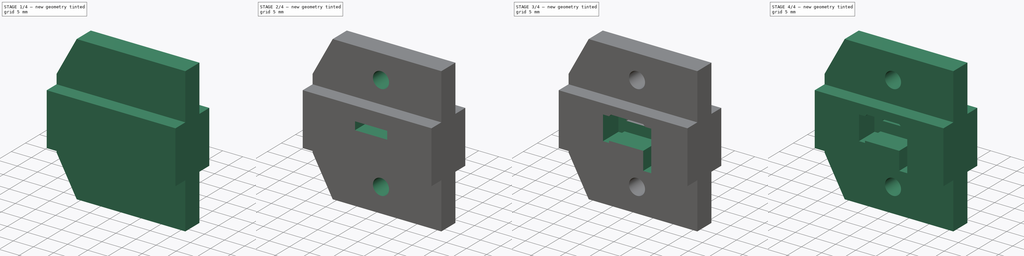
[diagram: build sequence overview — one tinted view per stage of 4, left to right]
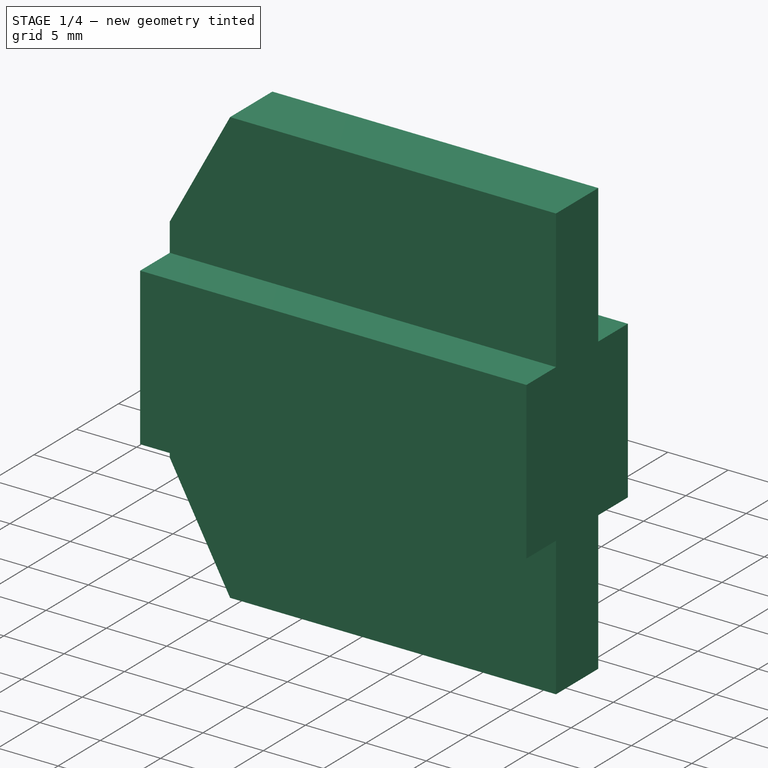
[diagram: stage 1 of 4 — iso view after this stage's code; geometry added in this stage tinted green]
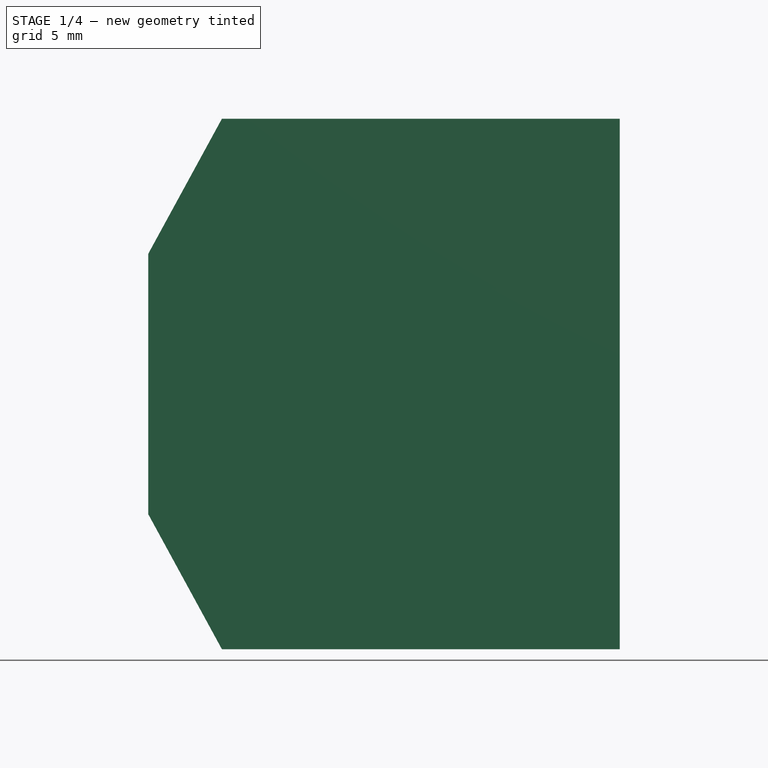
[diagram: stage 1 of 4 — front view after this stage's code; geometry added in this stage tinted green]
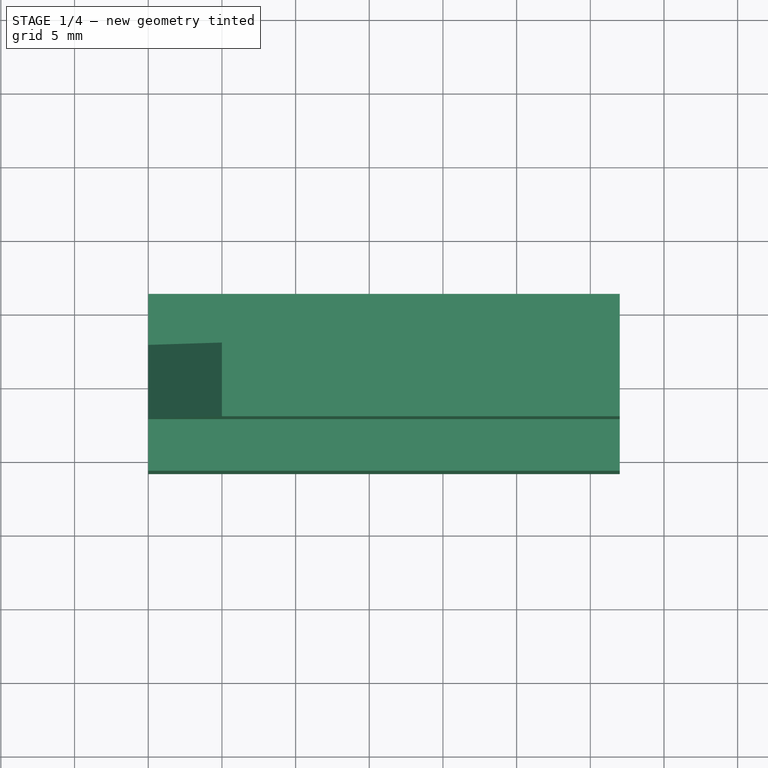
[diagram: stage 1 of 4 — top view after this stage's code; geometry added in this stage tinted green]
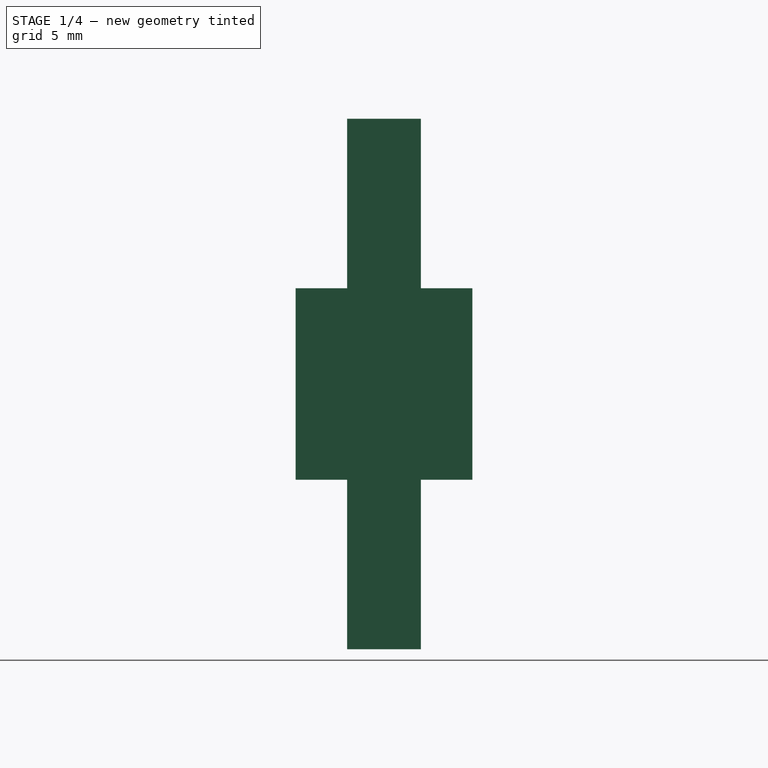
[diagram: stage 1 of 4 — right view after this stage's code; geometry added in this stage tinted green]
FCSTD DOCUMENT  (FreeCAD 0.20R29410 (Git))
Label: wuerth_idc_crimp
License: All rights reserved
LicenseURL: http://en.wikipedia.org/wiki/All_rights_reserved
objects: Sketcher::SketchObject×7, PartDesign::Pocket×5, Part::FeaturePython×3, PartDesign::Pad×1, Part::Extrusion×1, App::Part×1, PartDesign::Body×1, App::DocumentObjectGroup×1
note: 24 computed .brp shape members not serialized (recipe doc carries the construction recipe); baked Part::Feature solids carry a one-line shape summary decoded from their .brp

FEATURE [Sketcher::SketchObject] Sketch
  FullyConstrained = false
  MapMode = 5
  Placement = pos=(0,0,0) rot=(0.57735,0.57735,0.57735;2.0944rad)
  Support = -> [YZ_Plane]
  sketch-geometry (16):
    g0: LineSegment StartX=0 StartY=18 StartZ=0 EndX=2.5 EndY=18 EndZ=0
    g1: LineSegment StartX=2.5 StartY=18 StartZ=0 EndX=2.5 EndY=6.5 EndZ=0
    g2: LineSegment StartX=2.5 StartY=6.5 StartZ=0 EndX=6 EndY=6.5 EndZ=0
    g3: LineSegment StartX=6 StartY=6.5 StartZ=0 EndX=6 EndY=0 EndZ=0
    g4: LineSegment StartX=0 StartY=18 StartZ=0 EndX=-2.5 EndY=18 EndZ=0
    g5: LineSegment StartX=-2.5 StartY=18 StartZ=0 EndX=-2.5 EndY=6.5 EndZ=0
    g6: LineSegment StartX=-2.5 StartY=6.5 StartZ=0 EndX=-6 EndY=6.5 EndZ=0
    g7: LineSegment StartX=-6 StartY=6.5 StartZ=0 EndX=-6 EndY=0 EndZ=0
    g8: LineSegment StartX=0 StartY=-18 StartZ=0 EndX=2.5 EndY=-18 EndZ=0
    g9: LineSegment StartX=2.5 StartY=-18 StartZ=0 EndX=2.5 EndY=-6.5 EndZ=0
    g10: LineSegment StartX=2.5 StartY=-6.5 StartZ=0 EndX=6 EndY=-6.5 EndZ=0
    g11: LineSegment StartX=6 StartY=-6.5 StartZ=0 EndX=6 EndY=0 EndZ=0
    g12: LineSegment StartX=0 StartY=-18 StartZ=0 EndX=-2.5 EndY=-18 EndZ=0
    g13: LineSegment StartX=-2.5 StartY=-18 StartZ=0 EndX=-2.5 EndY=-6.5 EndZ=0
    g14: LineSegment StartX=-2.5 StartY=-6.5 StartZ=0 EndX=-6 EndY=-6.5 EndZ=0
    g15: LineSegment StartX=-6 StartY=-6.5 StartZ=0 EndX=-6 EndY=0 EndZ=0
  constraints (30):
    c: PointOnObject(g0,g-2)
    c: Horizontal(g0)
    c: Coincident(g0,g1)
    c: Vertical(g1)
    c: Coincident(g1,g2)
    c: Horizontal(g2)
    c: Coincident(g2,g3)
    c: PointOnObject(g3,g-1)
    c: Vertical(g3)
    c: Horizontal(g4)
    c: Coincident(g4,g5)
    c: Vertical(g5)
    c: Coincident(g5,g6)
    c: Horizontal(g6)
    c: Coincident(g6,g7)
    c: Vertical(g7)
    c: Horizontal(g8)
    c: Coincident(g8,g9)
    c: Vertical(g9)
    c: Coincident(g9,g10)
    c: Horizontal(g10)
    c: Coincident(g10,g11)
    c: Vertical(g11)
    c: Horizontal(g12)
    c: Coincident(g12,g13)
    c: Vertical(g13)
    c: Coincident(g13,g14)
    c: Horizontal(g14)
    c: Coincident(g14,g15)
    c: Vertical(g15)
FEATURE [PartDesign::Pad] Pad  label="base_insert"
  Direction = (1,-2e-16,3e-16)
  Length = 32
  Length2 = 10
  Placement = pos=(0,0,0) rot=(0.57735,0.57735,0.57735;2.0944rad)
  Profile = -> Sketch
  ReferenceAxis = -> Sketch [N_Axis]
  Type = 0
FEATURE [Sketcher::SketchObject] Sketch001
  FullyConstrained = false
  MapMode = 5
  Placement = pos=(0,0,0) rot=(1,0,0;1.5708rad)
  Support = -> [XZ_Plane]
  sketch-geometry (8):
    g0: LineSegment StartX=-1 StartY=7 StartZ=0 EndX=5 EndY=18 EndZ=0
    g1: LineSegment StartX=5 StartY=18 StartZ=0 EndX=5 EndY=19 EndZ=0
    g2: LineSegment StartX=5 StartY=19 StartZ=0 EndX=-1 EndY=19 EndZ=0
    g3: LineSegment StartX=-1 StartY=19 StartZ=0 EndX=-1 EndY=7 EndZ=0
    g4: LineSegment StartX=-1 StartY=-7 StartZ=0 EndX=5 EndY=-18 EndZ=0
    g5: LineSegment StartX=5 StartY=-18 StartZ=0 EndX=5 EndY=-19 EndZ=0
    g6: LineSegment StartX=5 StartY=-19 StartZ=0 EndX=-1 EndY=-19 EndZ=0
    g7: LineSegment StartX=-1 StartY=-19 StartZ=0 EndX=-1 EndY=-7 EndZ=0
  constraints (14):
    c: Coincident(g0,g1)
    c: Vertical(g1)
    c: Coincident(g1,g2)
    c: Horizontal(g2)
    c: Coincident(g2,g3)
    c: Coincident(g3,g0)
    c: Vertical(g3)
    c: Coincident(g4,g5)
    c: Vertical(g5)
    c: Coincident(g5,g6)
    c: Horizontal(g6)
    c: Coincident(g6,g7)
    c: Coincident(g7,g4)
    c: Vertical(g7)
FEATURE [PartDesign::Pocket] Pocket  label="front_chamfer"
  BaseFeature = -> Pad
  Direction = (0,1,-2e-16)
  Length = 10
  Length2 = 5
  Midplane = true
  Placement = pos=(0,0,0) rot=(0.57735,0.57735,0.57735;2.0944rad)
  Profile = -> Sketch001
  ReferenceAxis = -> Sketch001 [N_Axis]
  Type = 0
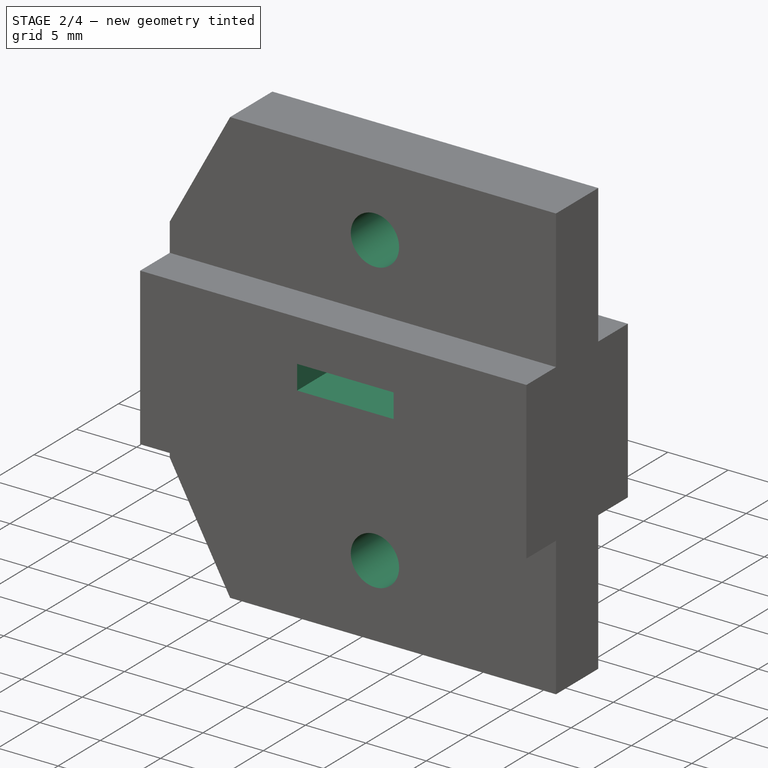
[diagram: stage 2 of 4 — iso view after this stage's code; geometry added in this stage tinted green]
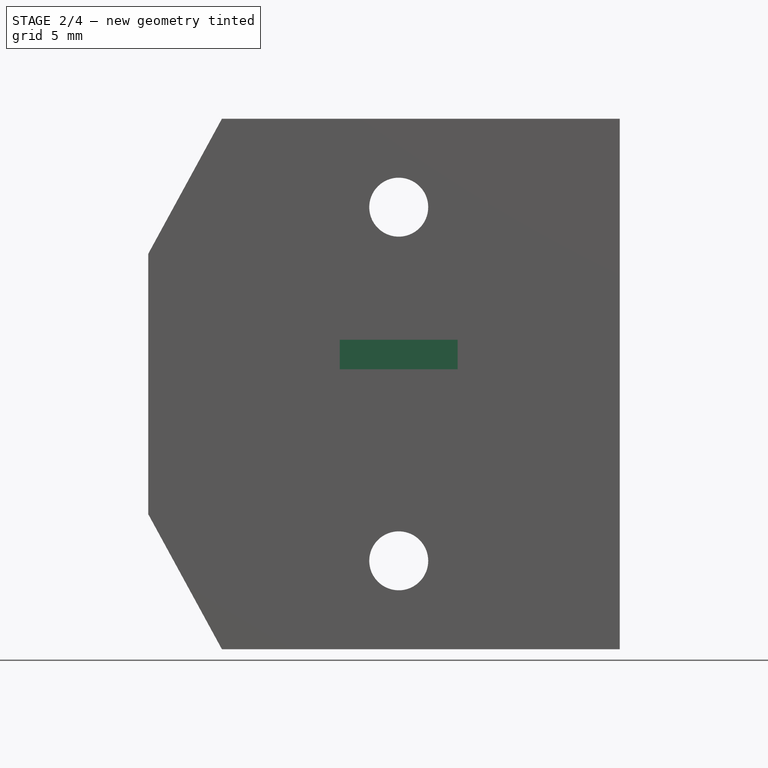
[diagram: stage 2 of 4 — front view after this stage's code; geometry added in this stage tinted green]
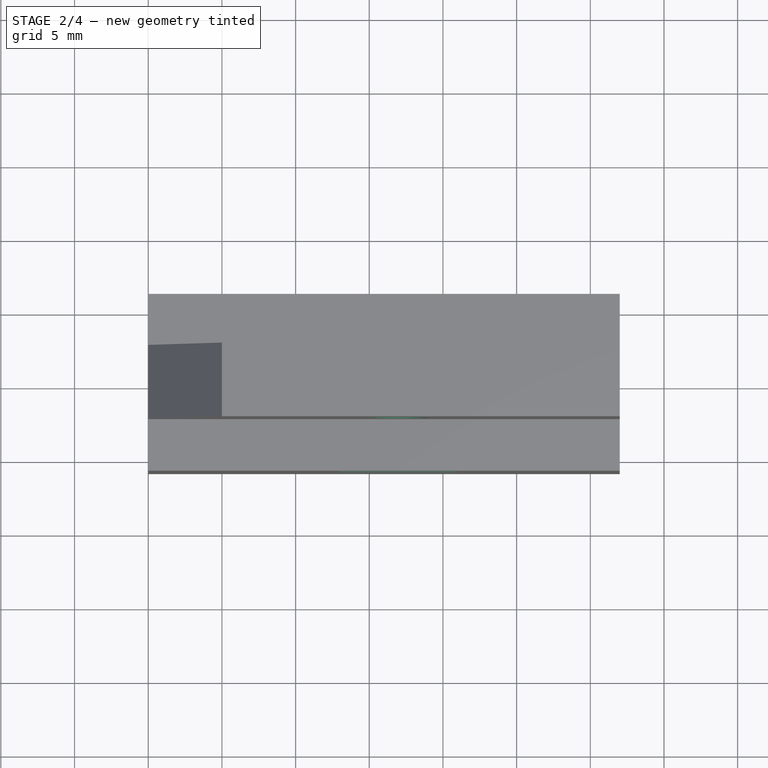
[diagram: stage 2 of 4 — top view after this stage's code; geometry added in this stage tinted green]
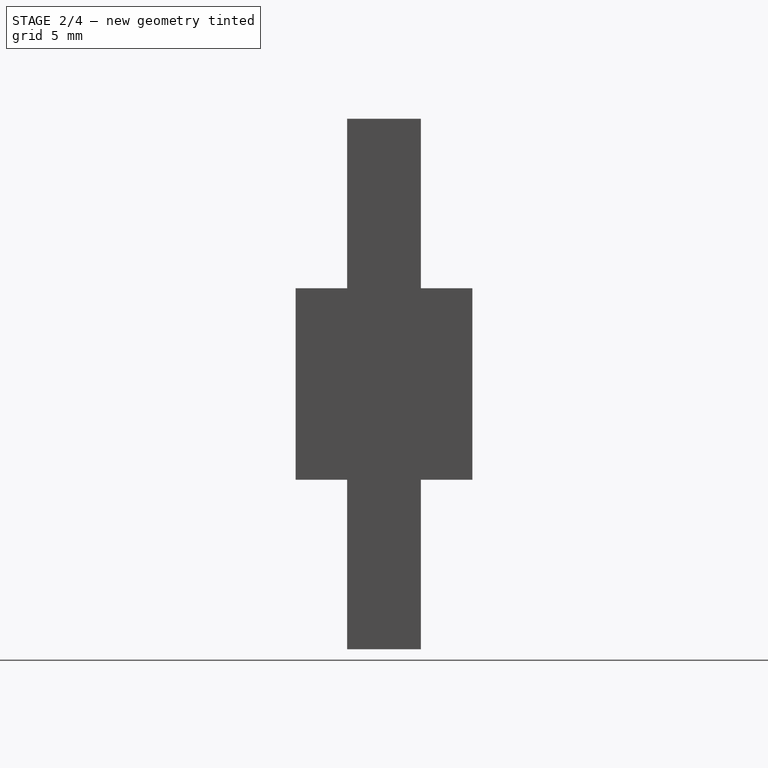
[diagram: stage 2 of 4 — right view after this stage's code; geometry added in this stage tinted green]
FEATURE [Sketcher::SketchObject] Sketch002
  FullyConstrained = false
  MapMode = 5
  Placement = pos=(0,0,0) rot=(1,0,0;1.5708rad)
  Support = -> [XZ_Plane]
  sketch-geometry (2):
    g0: Circle CenterX=17 CenterY=12 CenterZ=0 NormalX=0 NormalY=0 NormalZ=1 AngleXU=0 Radius=2
    g1: Circle CenterX=17 CenterY=-12 CenterZ=0 NormalX=0 NormalY=0 NormalZ=1 AngleXU=0 Radius=2
  constraints (2):
    c: Diameter(g0) = 4
    c: Diameter(g1) = 4
FEATURE [PartDesign::Pocket] Pocket001  label="mountingholes"
  BaseFeature = -> Pocket
  Direction = (0,1,-2e-16)
  Length = 10
  Length2 = 5
  Midplane = true
  Placement = pos=(0,0,0) rot=(0.57735,0.57735,0.57735;2.0944rad)
  Profile = -> Sketch002
  ReferenceAxis = -> Sketch002 [N_Axis]
  Type = 0
FEATURE [Sketcher::SketchObject] Sketch003
  AttachmentOffset = pos=(0,0,6) rot=(0,0,1;0rad)
  FullyConstrained = false
  MapMode = 5
  Placement = pos=(0,-6,-1.3e-15) rot=(1,0,0;1.5708rad)
  Support = -> [XZ_Plane]
  sketch-geometry (4):
    g0: LineSegment StartX=13 StartY=3 StartZ=0 EndX=21 EndY=3 EndZ=0
    g1: LineSegment StartX=21 StartY=3 StartZ=0 EndX=21 EndY=1 EndZ=0
    g2: LineSegment StartX=21 StartY=1 StartZ=0 EndX=13 EndY=1 EndZ=0
    g3: LineSegment StartX=13 StartY=1 StartZ=0 EndX=13 EndY=3 EndZ=0
  constraints (10):
    c: Coincident(g0,g1)
    c: Coincident(g1,g2)
    c: Coincident(g2,g3)
    c: Coincident(g3,g0)
    c: Horizontal(g0)
    c: Horizontal(g2)
    c: Vertical(g1)
    c: Vertical(g3)
    c: DistanceX(g2,g2) = 8
    c: DistanceY(g1,g1) = 2
FEATURE [PartDesign::Pocket] Pocket002  label="cable"
  BaseFeature = -> Pocket001
  Direction = (0,1,-2e-16)
  Length = 7
  Length2 = 5
  Placement = pos=(0,0,0) rot=(0.57735,0.57735,0.57735;2.0944rad)
  Profile = -> Sketch003
  ReferenceAxis = -> Sketch003 [N_Axis]
  Type = 0
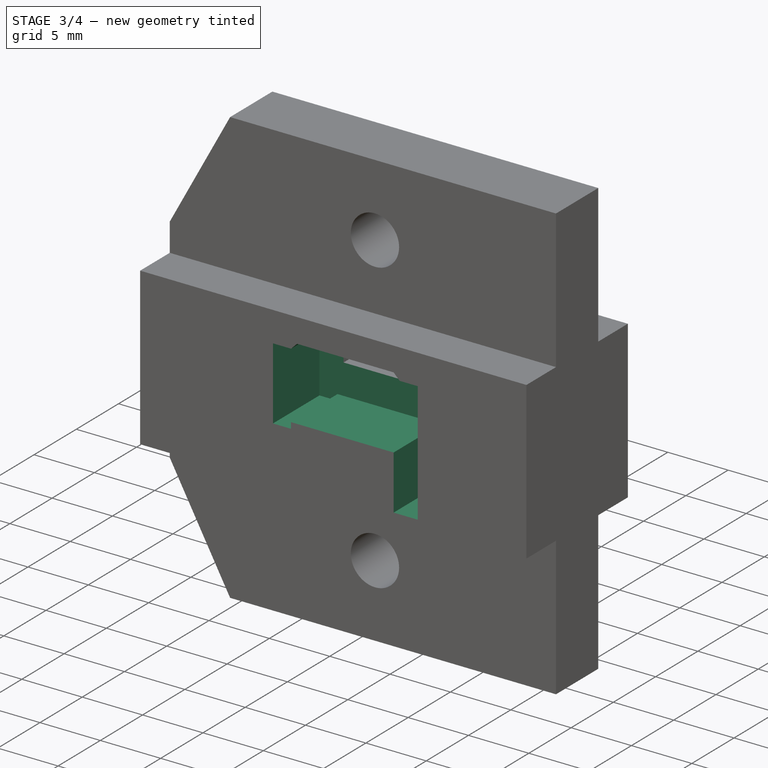
[diagram: stage 3 of 4 — iso view after this stage's code; geometry added in this stage tinted green]
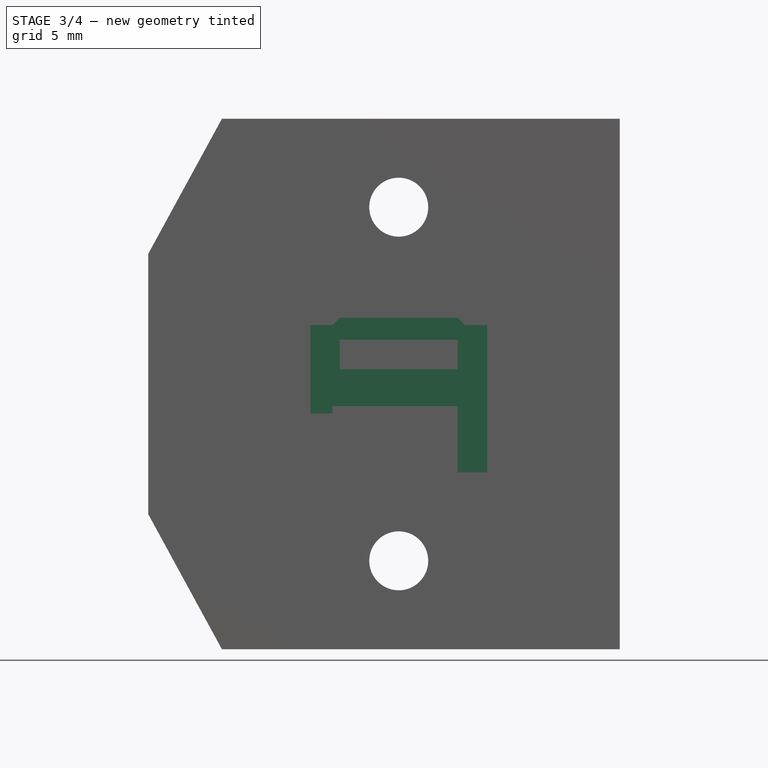
[diagram: stage 3 of 4 — front view after this stage's code; geometry added in this stage tinted green]
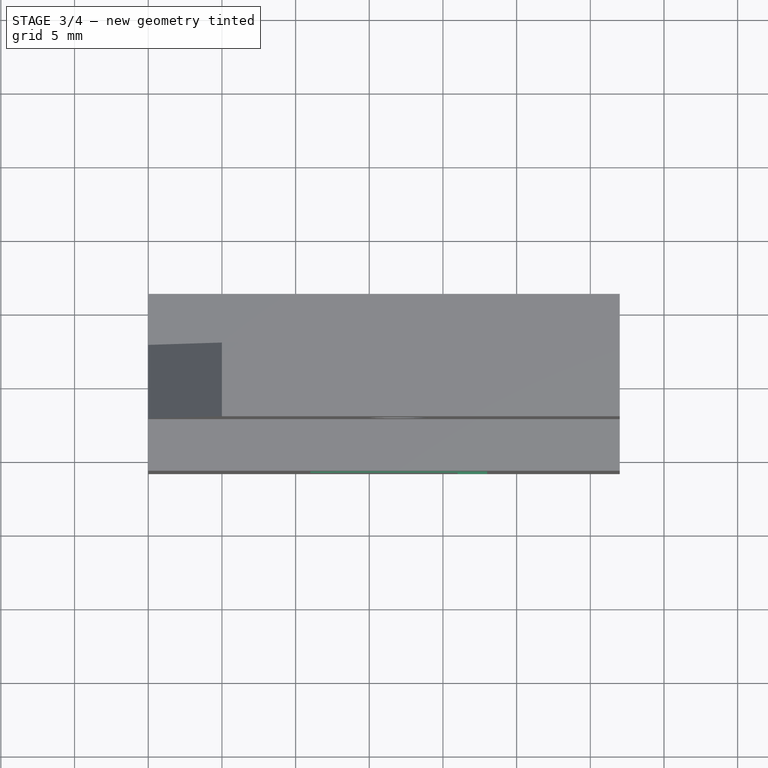
[diagram: stage 3 of 4 — top view after this stage's code; geometry added in this stage tinted green]
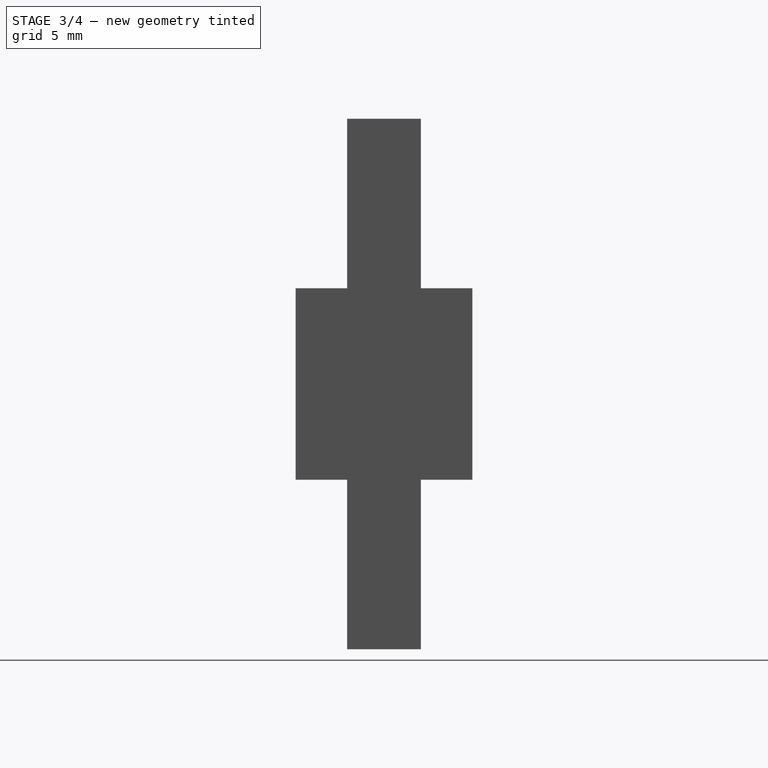
[diagram: stage 3 of 4 — right view after this stage's code; geometry added in this stage tinted green]
FEATURE [Sketcher::SketchObject] Sketch004
  AttachmentOffset = pos=(0,0,6) rot=(0,0,1;0rad)
  FullyConstrained = false
  MapMode = 5
  Placement = pos=(0,-6,-1.3e-15) rot=(1,0,0;1.5708rad)
  Support = -> [XZ_Plane]
  sketch-geometry (8):
    g0: LineSegment StartX=11 StartY=4 StartZ=0 EndX=23 EndY=4 EndZ=0
    g1: LineSegment StartX=23 StartY=4 StartZ=0 EndX=23 EndY=-1.5 EndZ=0
    g2: LineSegment StartX=21 StartY=-1.5 StartZ=0 EndX=11 EndY=-1.5 EndZ=0
    g3: LineSegment StartX=11 StartY=-1.5 StartZ=0 EndX=11 EndY=4 EndZ=0
    g4: LineSegment StartX=17 StartY=6 StartZ=0 EndX=17 EndY=-6 EndZ=0
    g5: LineSegment StartX=23 StartY=-1.5 StartZ=0 EndX=23 EndY=-6 EndZ=0
    g6: LineSegment StartX=23 StartY=-6 StartZ=0 EndX=21 EndY=-6 EndZ=0
    g7: LineSegment StartX=21 StartY=-6 StartZ=0 EndX=21 EndY=-1.5 EndZ=0
  constraints (17):
    c: Coincident(g0,g1)
    c: Coincident(g2,g3)
    c: Coincident(g3,g0)
    c: Horizontal(g0)
    c: Horizontal(g2)
    c: Vertical(g1)
    c: Vertical(g3)
    c: DistanceX(g2,g1) = 12
    c: DistanceY(g1,g1) = 5.5
    c: Symmetric(g1,g2,g4)
    c: Coincident(g1,g5)
    c: Vertical(g5)
    c: Coincident(g5,g6)
    c: Horizontal(g6)
    c: Coincident(g6,g7)
    c: Vertical(g7)
    c: Coincident(g7,g2)
FEATURE [PartDesign::Pocket] Pocket003  label="idc_plug"
  BaseFeature = -> Pocket002
  Direction = (0,1,-2e-16)
  Length = 5.5
  Length2 = 5
  Placement = pos=(0,0,0) rot=(0.57735,0.57735,0.57735;2.0944rad)
  Profile = -> Sketch004
  ReferenceAxis = -> Sketch004 [N_Axis]
  Type = 0
FEATURE [Sketcher::SketchObject] Sketch005
  FullyConstrained = false
  MapMode = 5
  Placement = pos=(0,0,0) rot=(1,0,0;1.5708rad)
  Support = -> [XZ_Plane001]
  sketch-geometry (1):
    g0: LineSegment StartX=-1 StartY=-1 StartZ=0 EndX=33 EndY=-1 EndZ=0
  constraints (1):
    c: Horizontal(g0)
FEATURE [Part::Extrusion] Extrude
  Base = -> Sketch005
  Dir = (0,-1,2e-16)
  DirMode = 2
  FaceMakerClass = Part::FaceMakerBullseye
  LengthFwd = 20
  LengthRev = 0
  Solid = false
  Symmetric = true
FEATURE [App::Part] Part  label="cut"
  Group = -> [Sketch005,Extrude]
  Origin = -> Origin001
FEATURE [Sketcher::SketchObject] Sketch006
  AttachmentOffset = pos=(0,0,0.5) rot=(0,0,1;0rad)
  FullyConstrained = false
  MapMode = 5
  Placement = pos=(0,-0.5,-1e-16) rot=(1,0,0;1.5708rad)
  Support = -> [XZ_Plane]
  sketch-geometry (8):
    g0: LineSegment StartX=12.5 StartY=4 StartZ=0 EndX=13 EndY=4.5 EndZ=0
    g1: LineSegment StartX=13 StartY=4.5 StartZ=0 EndX=21 EndY=4.5 EndZ=0
    g2: LineSegment StartX=21 StartY=4.5 StartZ=0 EndX=21.5 EndY=4 EndZ=0
    g3: LineSegment StartX=21.5 StartY=4 StartZ=0 EndX=12.5 EndY=4 EndZ=0
    g4: LineSegment StartX=11 StartY=-1.5 StartZ=0 EndX=11 EndY=-2 EndZ=0
    g5: LineSegment StartX=11 StartY=-2 StartZ=0 EndX=12.5 EndY=-2 EndZ=0
    g6: LineSegment StartX=12.5 StartY=-2 StartZ=0 EndX=12.5 EndY=-1.5 EndZ=0
    g7: LineSegment StartX=12.5 StartY=-1.5 StartZ=0 EndX=11 EndY=-1.5 EndZ=0
  constraints (14):
    c: Coincident(g0,g1)
    c: Horizontal(g1)
    c: Coincident(g1,g2)
    c: Coincident(g2,g3)
    c: Coincident(g3,g0)
    c: Horizontal(g3)
    c: Vertical(g4)
    c: Coincident(g4,g5)
    c: Horizontal(g5)
    c: Coincident(g5,g6)
    c: Vertical(g6)
    c: Coincident(g6,g7)
    c: Coincident(g7,g4)
    c: Horizontal(g7)
FEATURE [PartDesign::Pocket] Pocket004
  BaseFeature = -> Pocket003
  Direction = (0,1,2e-16)
  Length = 6
  Length2 = 5
  Placement = pos=(0,0,0) rot=(0.57735,0.57735,0.57735;2.0944rad)
  Profile = -> Sketch006
  ReferenceAxis = -> Sketch006 [N_Axis]
  Reversed = true
  Type = 0
FEATURE [PartDesign::Body] Body
  Group = -> [Sketch,Pad,Sketch001,Pocket,Sketch002,Pocket001,Sketch003,Pocket002,Sketch004,Pocket003,Sketch006,Pocket004]
  Origin = -> Origin
  Tip = -> Pocket004
FEATURE [Part::FeaturePython] Slice  # WARN: FeaturePython — macro-defined, semantics opaque (R4)
  Base = -> Body
  Mode = 1
  Tolerance = 0
  Tools = -> [Extrude]
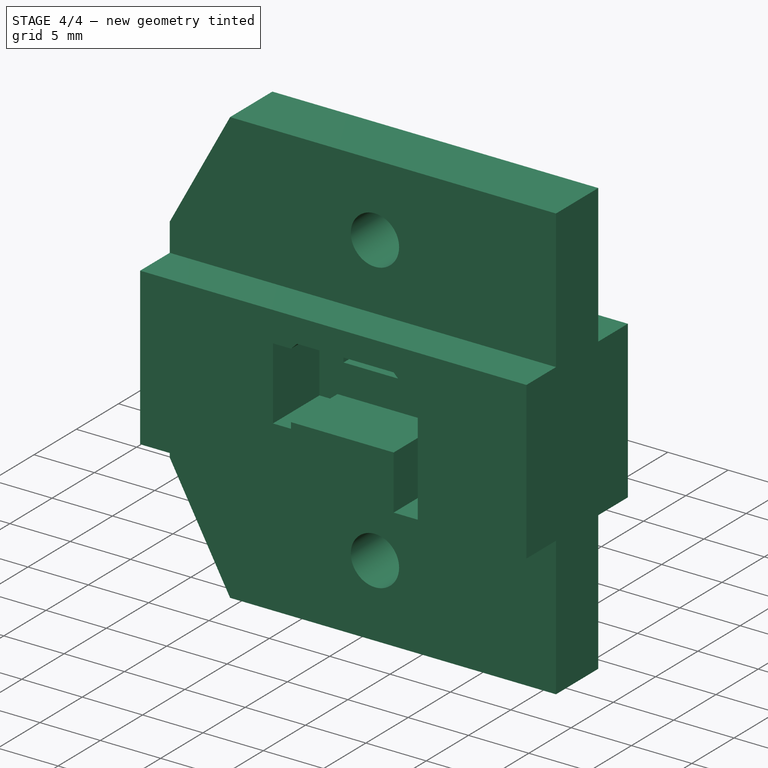
[diagram: stage 4 of 4 — iso view after this stage's code; geometry added in this stage tinted green]
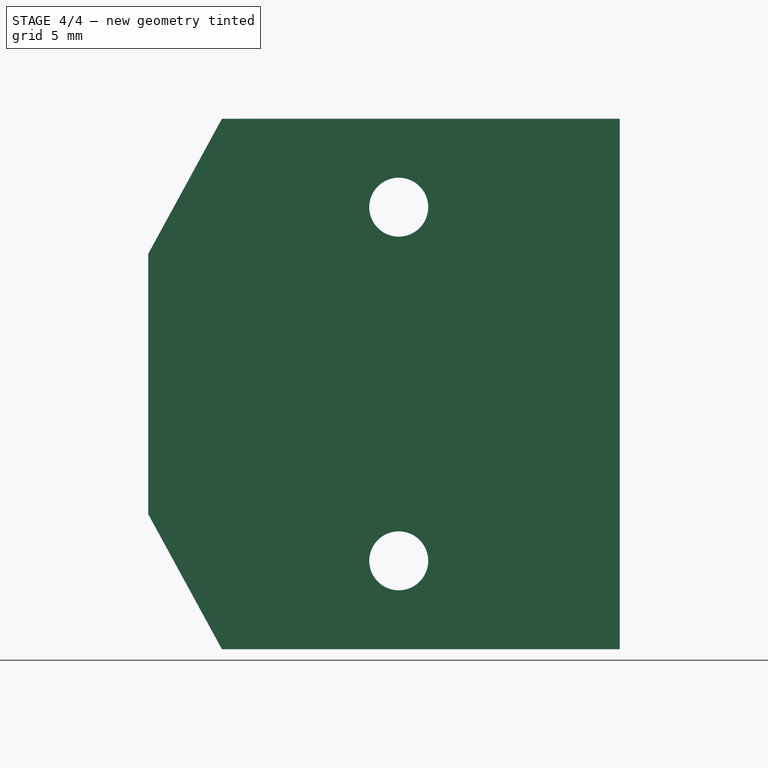
[diagram: stage 4 of 4 — front view after this stage's code; geometry added in this stage tinted green]
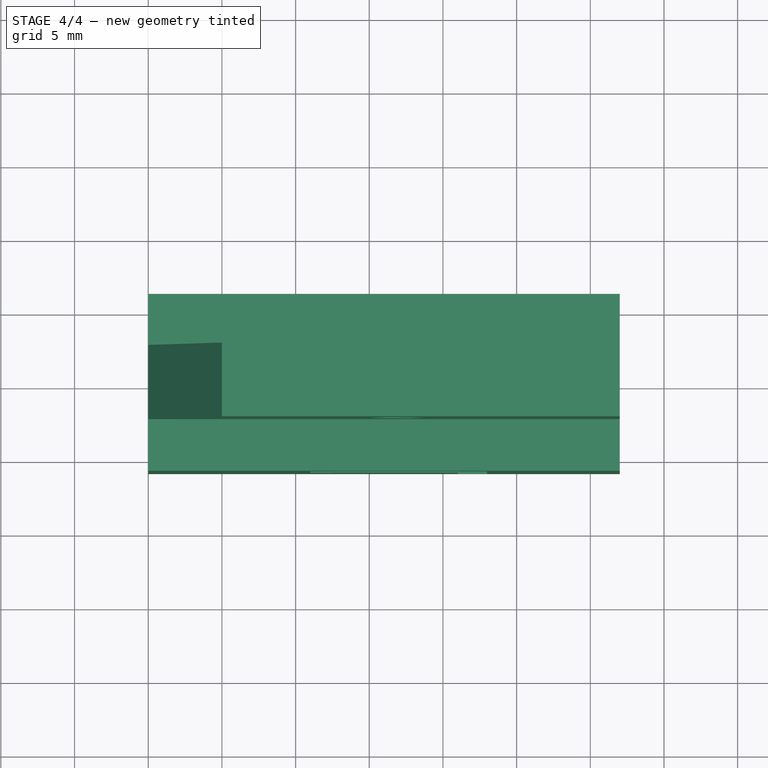
[diagram: stage 4 of 4 — top view after this stage's code; geometry added in this stage tinted green]
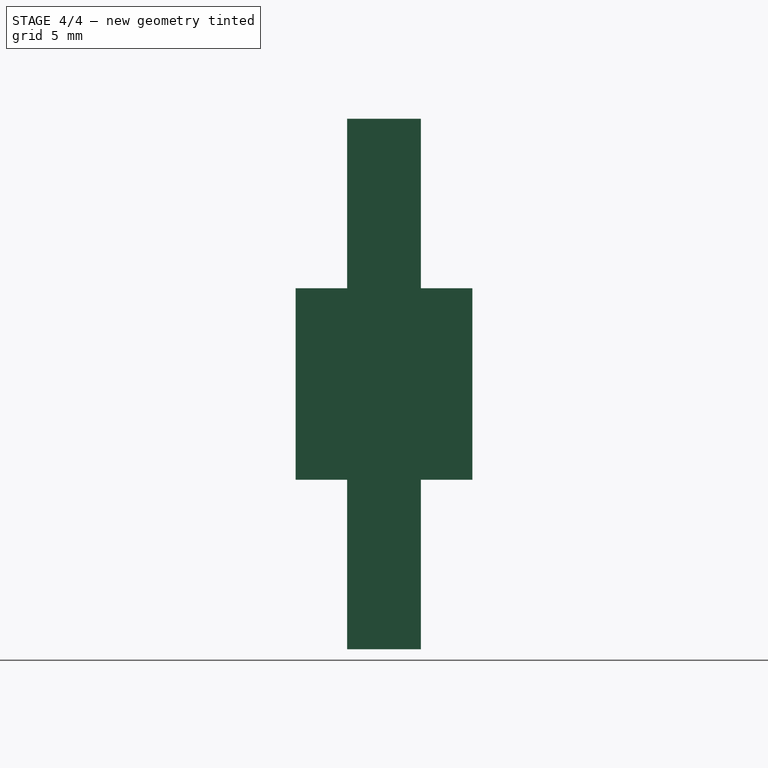
[diagram: stage 4 of 4 — right view after this stage's code; geometry added in this stage tinted green]
FEATURE [Part::FeaturePython] Slice_child0  label="Slice.0"  # WARN: FeaturePython — macro-defined, semantics opaque (R4)
  Base = -> Slice
  FilterType = 1
  Invert = false
  OverrideMaxVal = 0
  WindowFrom = 80
  WindowTo = 100
  items = 0
FEATURE [Part::FeaturePython] Slice_child1  label="Slice.1"  # WARN: FeaturePython — macro-defined, semantics opaque (R4)
  Base = -> Slice
  FilterType = 1
  Invert = false
  OverrideMaxVal = 0
  WindowFrom = 80
  WindowTo = 100
  items = 1
FEATURE [App::DocumentObjectGroup] GrExplode_Slice  label="Exploded Slice"
  Group = -> [Slice_child0,Slice_child1]
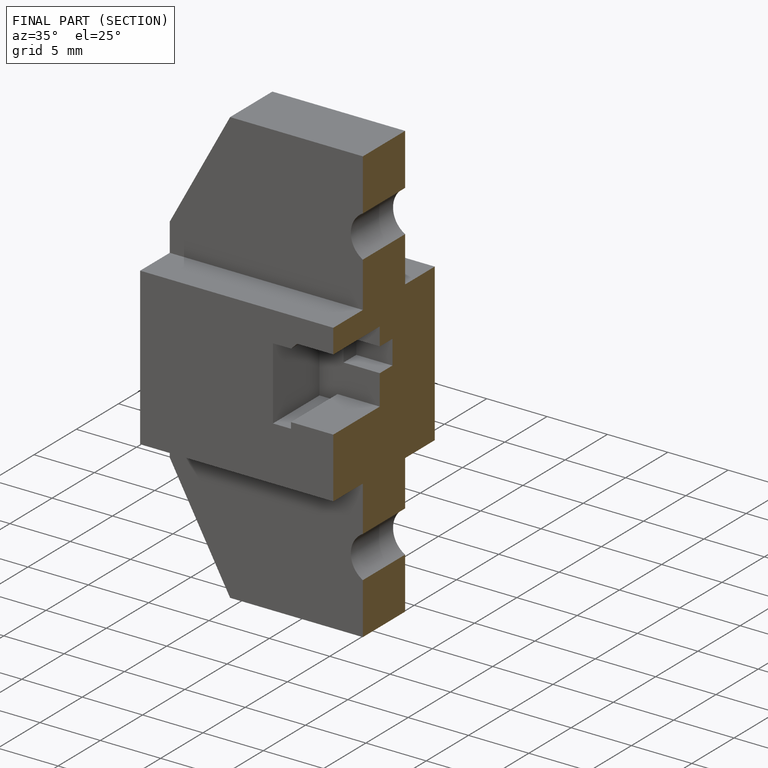
[diagram: finished part — half-section view (interior)]
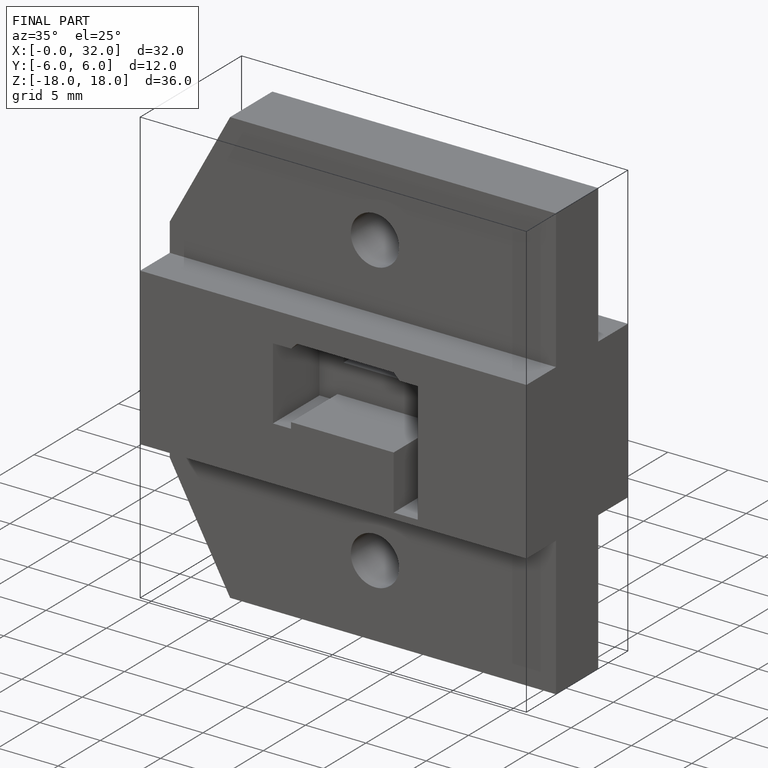
[diagram: finished part — iso view with bounding-box wireframe]
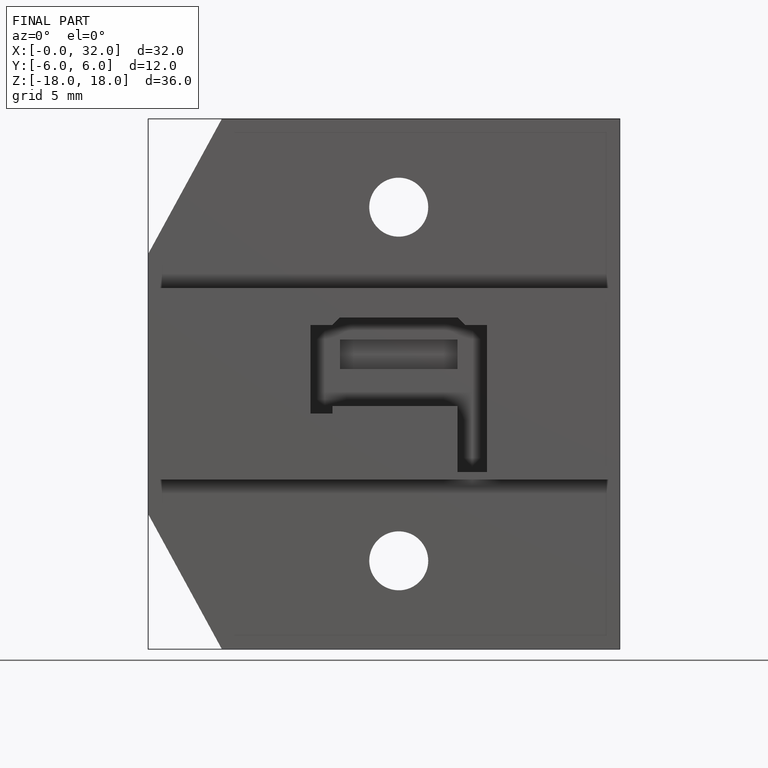
[diagram: finished part — front view with bounding-box wireframe]
